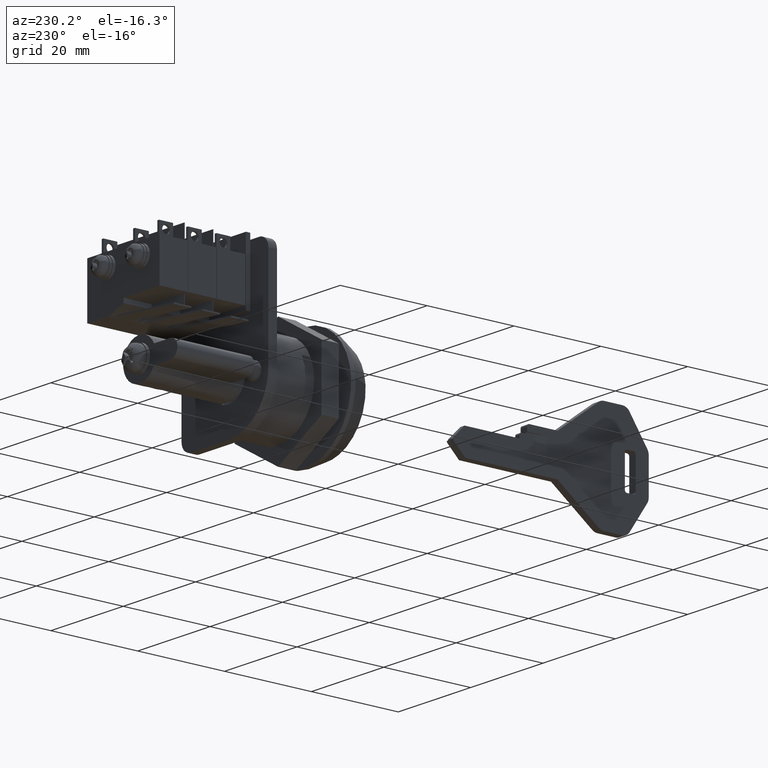
[diagram: clean part render]
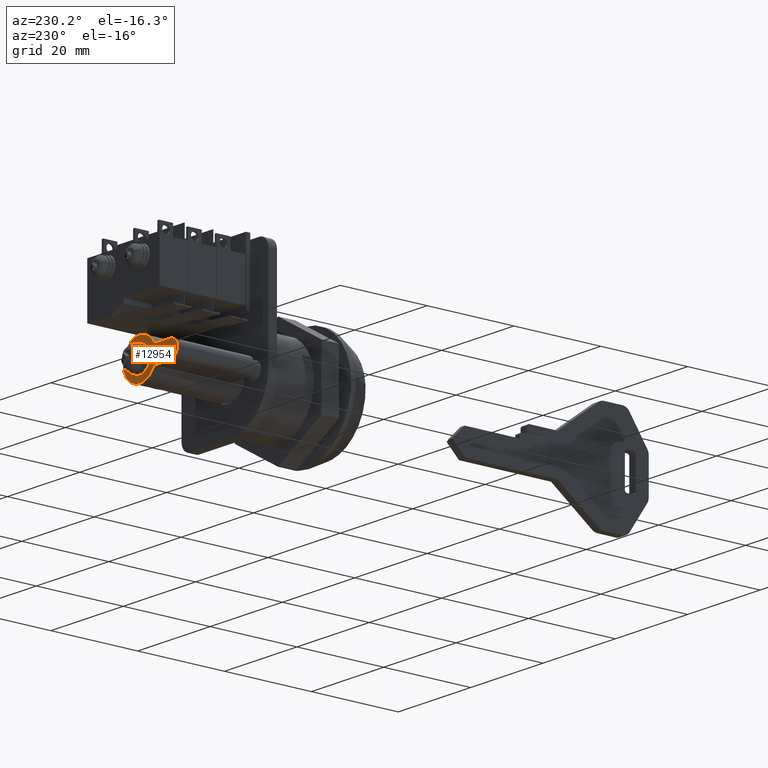
[diagram: same view with one face highlighted and labeled with its STEP entity id]
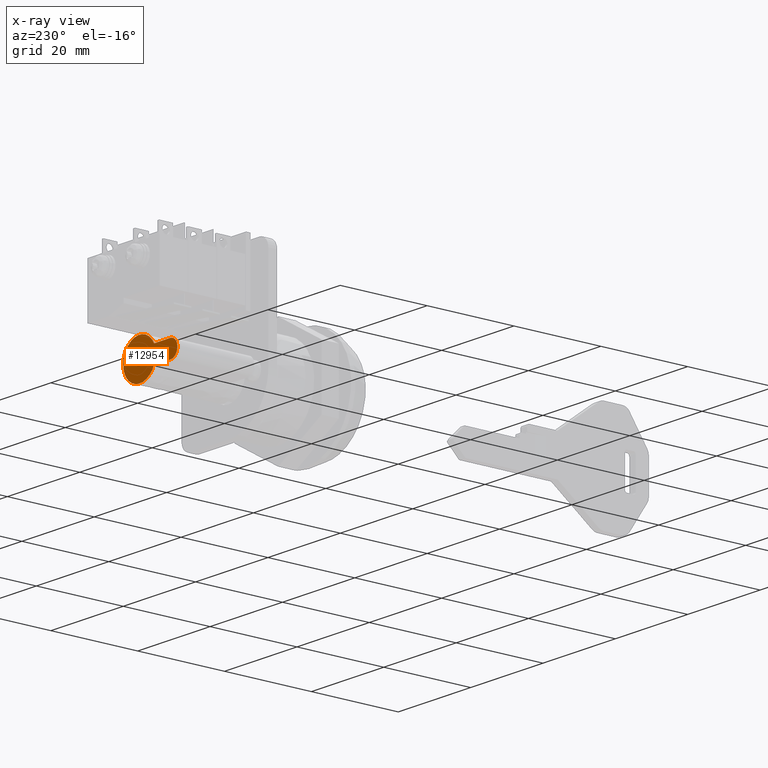
[diagram: x-ray of the same camera — body ghosted, the highlighted face saturated]
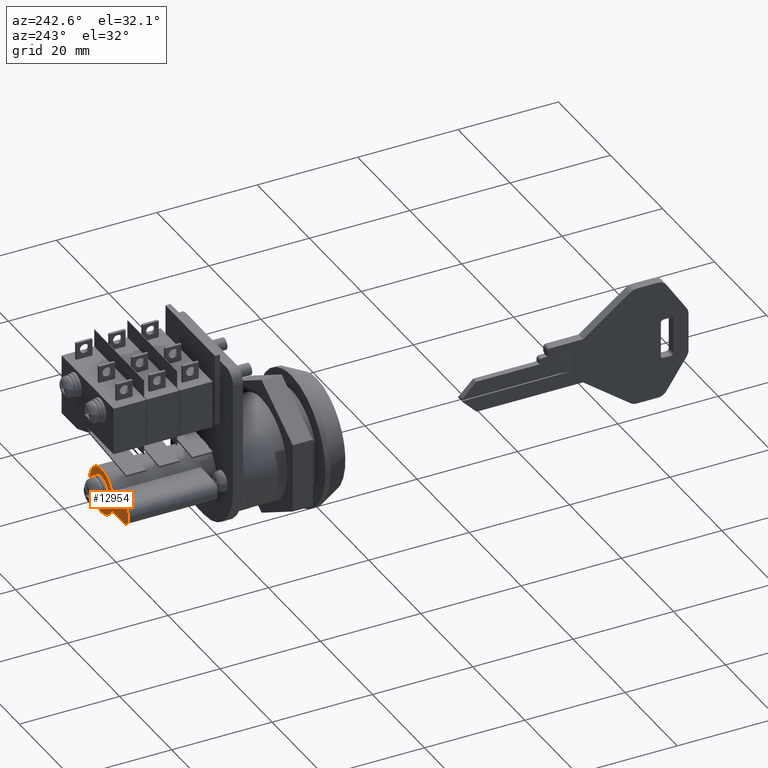
[diagram: same view with one face highlighted and labeled with its STEP entity id]
A machine part, auxiliary view. The second image highlights one B-rep face of the part: STEP entity #12954.
The next image is the same camera in x-ray: the body ghosted, the highlighted face saturated — about 0% of this face is hidden behind the body in this view.
A second angle (auxiliary view) of the same face is appended — the face is thin or edge-on in the first view.
In plain terms, the highlighted face is a freeform B-spline surface patch.
Its self-contained STEP definition (entity closure, byte-faithful):
#12558=CARTESIAN_POINT('',(42.925980000000003,-1.141960955238292,0.135739370527664));
#12559=VERTEX_POINT('',#12558);
#12565=CARTESIAN_POINT('',(42.925980000000003,0.0,-1.150000000000000));
#12566=VERTEX_POINT('',#12565);
#12567=CARTESIAN_POINT('',(42.925979999999996,-1.141960955238292,0.135739370527664));
#12568=CARTESIAN_POINT('',(42.925980000000003,-1.150000000000000,0.068107738279197));
#12569=CARTESIAN_POINT('',(42.925980000000003,-1.150000000000000,-1.110223E-016));
#12570=CARTESIAN_POINT('',(42.925979999999996,-1.150000000000000,-1.150000000000000));
#12571=CARTESIAN_POINT('',(42.925980000000003,0.0,-1.150000000000000));
#12579=(BOUNDED_CURVE()B_SPLINE_CURVE(2,(#12567,#12568,#12569,#12570,#12571),.UNSPECIFIED.,.F.,.U.)B_SPLINE_CURVE_WITH_KNOTS((3,2,3),(0.229562473316624,0.250000000000000,0.500000000000000),.UNSPECIFIED.)CURVE()GEOMETRIC_REPRESENTATION_ITEM()RATIONAL_B_SPLINE_CURVE((0.956026753797799,0.976055948100481,1.0,0.707106781186547,1.0))REPRESENTATION_ITEM(''));
#12580=EDGE_CURVE('',#12559,#12566,#12579,.T.);
#12582=CARTESIAN_POINT('',(42.925980000000003,1.147855018134226,-0.070205821297633));
#12583=VERTEX_POINT('',#12582);
#12584=CARTESIAN_POINT('',(42.925980000000003,0.0,-1.150000000000000));
#12585=CARTESIAN_POINT('',(42.925980000000010,1.081811975369325,-1.150000000000000));
#12586=CARTESIAN_POINT('',(42.925979999999996,1.147855018134226,-0.070205821297633));
#12594=(BOUNDED_CURVE()B_SPLINE_CURVE(2,(#12584,#12585,#12586),.UNSPECIFIED.,.F.,.U.)B_SPLINE_CURVE_WITH_KNOTS((3,3),(0.500000000000000,0.739332961991670),.UNSPECIFIED.)CURVE()GEOMETRIC_REPRESENTATION_ITEM()RATIONAL_B_SPLINE_CURVE((1.0,0.719603993576409,0.976072041136764))REPRESENTATION_ITEM(''));
#12595=EDGE_CURVE('',#12566,#12583,#12594,.T.);
#12669=CARTESIAN_POINT('',(42.925980000000003,0.0,1.150000000000000));
#12670=VERTEX_POINT('',#12669);
#12671=CARTESIAN_POINT('',(42.925979999999996,1.147855018134226,-0.070205821297633));
#12672=CARTESIAN_POINT('',(42.925980000000003,1.150000000000000,-0.035135678628259));
#12673=CARTESIAN_POINT('',(42.925980000000003,1.150000000000000,-1.110223E-016));
#12674=CARTESIAN_POINT('',(42.925979999999996,1.150000000000000,1.150000000000000));
#12675=CARTESIAN_POINT('',(42.925980000000003,0.0,1.150000000000000));
#12683=(BOUNDED_CURVE()B_SPLINE_CURVE(2,(#12671,#12672,#12673,#12674,#12675),.UNSPECIFIED.,.F.,.U.)B_SPLINE_CURVE_WITH_KNOTS((3,2,3),(0.739332961991670,0.750000000000000,1.0),.UNSPECIFIED.)CURVE()GEOMETRIC_REPRESENTATION_ITEM()RATIONAL_B_SPLINE_CURVE((0.976072041136764,0.987502787610139,1.0,0.707106781186547,1.0))REPRESENTATION_ITEM(''));
#12684=EDGE_CURVE('',#12583,#12670,#12683,.T.);
#12686=CARTESIAN_POINT('',(42.925980000000003,0.0,1.150000000000000));
#12687=CARTESIAN_POINT('',(42.925980000000003,-1.021400703632794,1.150000000000000));
#12688=CARTESIAN_POINT('',(42.925980000000003,-1.141960955238292,0.135739370527664));
#12696=(BOUNDED_CURVE()B_SPLINE_CURVE(2,(#12686,#12687,#12688),.UNSPECIFIED.,.F.,.U.)B_SPLINE_CURVE_WITH_KNOTS((3,3),(0.0,0.229562473316624),.UNSPECIFIED.)CURVE()GEOMETRIC_REPRESENTATION_ITEM()RATIONAL_B_SPLINE_CURVE((1.0,0.731050833086066,0.956026753797799))REPRESENTATION_ITEM(''));
#12697=EDGE_CURVE('',#12670,#12559,#12696,.T.);
#12887=CARTESIAN_POINT('',(42.925980000000003,-5.249241917336002,4.946011377324875));
#12888=CARTESIAN_POINT('',(42.925980000000003,11.249257246784479,4.946011377324875));
#12889=CARTESIAN_POINT('',(42.925980000000003,-5.249241917336002,-4.946011602870525));
#12890=CARTESIAN_POINT('',(42.925980000000003,11.249257246784479,-4.946011602870525));
#12891=B_SPLINE_SURFACE_WITH_KNOTS('',1,1,((#12887,#12889),(#12888,#12890)),.UNSPECIFIED.,.F.,.F.,.U.,(2,2),(2,2),(0.0,16.498499164120481),(0.0,9.892022980195399),.UNSPECIFIED.);
#12892=CARTESIAN_POINT('',(42.925980000000003,8.500007895280429,-2.0));
#12893=VERTEX_POINT('',#12892);
#12894=CARTESIAN_POINT('',(42.925980000000003,4.031136977516345,-1.999999791657385));
#12895=VERTEX_POINT('',#12894);
#12896=CARTESIAN_POINT('',(42.925980000000003,8.500007895280429,-2.0));
#12897=CARTESIAN_POINT('',(42.925980000000003,4.031136977516345,-1.999999791657385));
#12898=QUASI_UNIFORM_CURVE('',1,(#12896,#12897),.UNSPECIFIED.,.F.,.U.);
#12899=EDGE_CURVE('',#12893,#12895,#12898,.T.);
#12900=ORIENTED_EDGE('',*,*,#12899,.F.);
#12901=CARTESIAN_POINT('',(42.925980000000003,8.500008000000191,2.000000000000070));
#12902=VERTEX_POINT('',#12901);
#12903=CARTESIAN_POINT('',(42.925980000000003,8.500007895280429,-1.999999999999997));
#12904=CARTESIAN_POINT('',(42.925979999999996,9.654708456930738,-2.000000060459981));
#12905=CARTESIAN_POINT('',(42.925980000000003,10.232058772662480,-1.000000060459980));
#12906=CARTESIAN_POINT('',(42.925979999999996,10.809409088394222,-0.000000060459981));
#12907=CARTESIAN_POINT('',(42.925980000000003,10.232058825022360,0.999999969770010));
#12908=CARTESIAN_POINT('',(42.925979999999996,9.654708561650500,2.000000000000000));
#12909=CARTESIAN_POINT('',(42.925980000000003,8.500008000000191,2.0));
#12917=(BOUNDED_CURVE()B_SPLINE_CURVE(2,(#12903,#12904,#12905,#12906,#12907,#12908,#12909),.UNSPECIFIED.,.F.,.U.)B_SPLINE_CURVE_WITH_KNOTS((3,2,2,3),(0.0,0.333333333333333,0.666666666666667,1.0),.UNSPECIFIED.)CURVE()GEOMETRIC_REPRESENTATION_ITEM()RATIONAL_B_SPLINE_CURVE((1.0,0.866025399421115,1.0,0.866025399421115,1.0,0.866025399421115,1.0))REPRESENTATION_ITEM(''));
#12918=EDGE_CURVE('',#12893,#12902,#12917,.T.);
#12919=ORIENTED_EDGE('',*,*,#12918,.T.);
#12920=CARTESIAN_POINT('',(42.925980000000003,4.031136837890005,2.000000073083280));
#12921=VERTEX_POINT('',#12920);
#12922=CARTESIAN_POINT('',(42.925980000000003,4.031136837890005,2.000000073083280));
#12923=CARTESIAN_POINT('',(42.925980000000003,8.500008000000191,2.000000000000070));
#12924=QUASI_UNIFORM_CURVE('',1,(#12922,#12923),.UNSPECIFIED.,.F.,.U.);
#12925=EDGE_CURVE('',#12921,#12902,#12924,.T.);
#12926=ORIENTED_EDGE('',*,*,#12925,.F.);
#12927=CARTESIAN_POINT('',(42.925980000000003,4.031136837890005,2.000000073083281));
#12928=CARTESIAN_POINT('',(42.925980000000010,2.445782945203818,5.195382853852835));
#12929=CARTESIAN_POINT('',(42.925980000000003,-1.027104589654694,4.381214412485702));
#12930=CARTESIAN_POINT('',(42.925980000000010,-4.499992124513207,3.567045971118569));
#12931=CARTESIAN_POINT('',(42.925980000000003,-4.499991999999804,-0.000000157079636));
#12932=CARTESIAN_POINT('',(42.925980000000010,-4.499991875486404,-3.567046285277840));
#12933=CARTESIAN_POINT('',(42.925980000000003,-1.027104283788219,-4.381214484191678));
#12934=CARTESIAN_POINT('',(42.925980000000010,2.445783307909967,-5.195382683105516));
#12935=CARTESIAN_POINT('',(42.925980000000003,4.031136977516344,-1.999999791657387));
#12943=(BOUNDED_CURVE()B_SPLINE_CURVE(2,(#12927,#12928,#12929,#12930,#12931,#12932,#12933,#12934,#12935),.UNSPECIFIED.,.F.,.U.)B_SPLINE_CURVE_WITH_KNOTS((3,2,2,2,3),(0.0,0.250000000000000,0.500000000000000,0.750000000000000,1.0),.UNSPECIFIED.)CURVE()GEOMETRIC_REPRESENTATION_ITEM()RATIONAL_B_SPLINE_CURVE((1.0,0.783660388229610,1.0,0.783660388229610,1.0,0.783660388229610,1.0,0.783660388229610,1.0))REPRESENTATION_ITEM(''));
#12944=EDGE_CURVE('',#12921,#12895,#12943,.T.);
#12945=ORIENTED_EDGE('',*,*,#12944,.T.);
#12946=EDGE_LOOP('',(#12900,#12919,#12926,#12945));
#12947=FACE_OUTER_BOUND('',#12946,.T.);
#12948=ORIENTED_EDGE('',*,*,#12595,.F.);
#12949=ORIENTED_EDGE('',*,*,#12580,.F.);
#12950=ORIENTED_EDGE('',*,*,#12697,.F.);
#12951=ORIENTED_EDGE('',*,*,#12684,.F.);
#12952=EDGE_LOOP('',(#12948,#12949,#12950,#12951));
#12953=FACE_BOUND('',#12952,.T.);
#12954=ADVANCED_FACE('',(#12947,#12953),#12891,.F.);